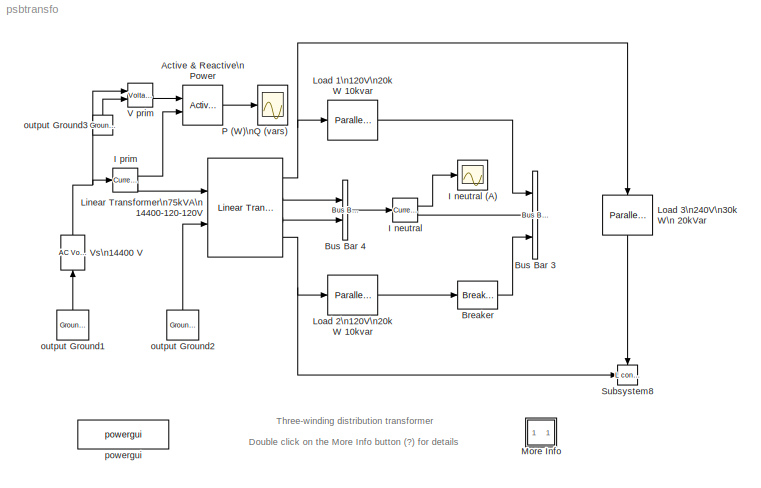
MODEL psbtransfo
KIND model
BLOCK [Reference] Active & Reactive\nPower  REF=powerlib_extras/Measurements/Active & Reactive\nPower
  Ports = [2, 1]
  SourceBlock = powerlib_extras/Measurements/Active & Reactive\nPower
  SourceType = Active & Reactive Power
  f1 = 60
BLOCK [Reference] Breaker  REF=powerlib2/Elements/Breaker
  PSBOutputType = 1
  Ports = [1, 1]
  SourceBlock = powerlib2/Elements/Breaker
  SourceType = Breaker
  Tag = PoWeRsYsTeMbLoCk
  Ts = 0
  a = 1e-5
  c = 1
  comext = off
  cs = 0
  mesure = None
  rs = inf
  times = [ .05 ]
BLOCK [Reference] Bus Bar 3  REF=powerlib2/Connectors/Bus Bar (vert)
  PSBOutputType = 11111111111111111111111111111111111111111111111111111111111111111111111111111111111111111
  Ports = [3]
  SourceBlock = powerlib2/Connectors/Bus Bar (vert)
  SourceType = Bus Bar
  Tag = PoWeRsYsTeMbLoCk
  entrees = 3
  sorties = 0
BLOCK [Reference] Bus Bar 4  REF=powerlib2/Connectors/Bus Bar (thin vert)
  PSBOutputType = 111111111111111111111111111111111111111111111111111111111111111111111111111111111111
  Ports = [2, 1]
  SourceBlock = powerlib2/Connectors/Bus Bar (thin vert)
  SourceType = Bus Bar
  Tag = PoWeRsYsTeMbLoCk
  input = 2
  output = 1
BLOCK [Reference] I neutral  REF=powerlib2/Measurements/Current Measurement
  OutputType = Magnitude
  PSBOutputType = 01
  PSBequivalent = 0
  PhasorSimulation = off
  Ports = [1, 2]
  SourceBlock = powerlib2/Measurements/Current Measurement
  SourceType = Current Measurement
  Tag = PoWeRsYsTeMmEaSuReMeNt
BLOCK [Scope] I neutral (A)
  DataFormat = Array
  NumInputPorts = 1
  Ports = [1]
  TickLabels = on
  TimeRange = 0.2
  YMax = 300
  YMin = -300
BLOCK [Reference] I prim  REF=powerlib2/Measurements/Current Measurement
  OutputType = Magnitude
  PSBOutputType = 01
  PSBequivalent = 0
  PhasorSimulation = off
  Ports = [1, 2]
  SourceBlock = powerlib2/Measurements/Current Measurement
  SourceType = Current Measurement
  Tag = PoWeRsYsTeMmEaSuReMeNt
BLOCK [Reference] Linear Transformer\n75kVA\n14400-120-120V  REF=powerlib2/Elements/Linear Transformer
  PSBOutputType = 1111
  Ports = [2, 4]
  SourceBlock = powerlib2/Elements/Linear Transformer
  SourceType = Linear Transformer
  Tag = PoWeRsYsTeMbLoCk
  a = [75e3,60]
  b = [14.4e3 0.01,0.03]
  c = [120,0.02,0]
  d = [120,0.02,0]
  e = [50,50]
  mesure = None
  w3check = on
BLOCK [Reference] Load 1\n120V\n20kW 10kvar  REF=powerlib2/Elements/Parallel RLC Load
  PSBOutputType = 1
  Ports = [1, 1]
  SourceBlock = powerlib2/Elements/Parallel RLC Load
  SourceType = Parallel RLC Load
  Tag = PoWeRsYsTeMbLoCk
  a = 120
  b = 60
  c = 20e3
  d = 10e3
  e = 0
  mesure = None
BLOCK [Reference] Load 2\n120V\n20kW 10kvar  REF=powerlib2/Elements/Parallel RLC Load
  PSBOutputType = 1
  Ports = [1, 1]
  SourceBlock = powerlib2/Elements/Parallel RLC Load
  SourceType = Parallel RLC Load
  Tag = PoWeRsYsTeMbLoCk
  a = 120
  b = 60
  c = 20e3
  d = 10e3
  e = 0
  mesure = None
BLOCK [Reference] Load 3\n240V\n30kW\n 20kVar  REF=powerlib2/Elements/Parallel RLC Load
  PSBOutputType = 1
  Ports = [1, 1]
  SourceBlock = powerlib2/Elements/Parallel RLC Load
  SourceType = Parallel RLC Load
  Tag = PoWeRsYsTeMbLoCk
  a = 240
  b = 60
  c = 30e3
  d = 0
  e = 20e3
  mesure = None
BLOCK [SubSystem] More Info
  MaskDisplay = disp('?')
  MaskIconFrame = on
  MaskIconOpaque = on
  MaskIconRotate = none
  MaskIconUnits = autoscale
  MinAlgLoopOccurrences = off
  Ports = []
  RTWSystemCode = Auto
  TreatAsAtomicUnit = off
BLOCK [Scope] P (W)\nQ (vars)
  DataFormat = Array
  MaskIconFrame = on
  MaskIconOpaque = on
  MaskIconRotate = none
  MaskIconUnits = autoscale
  NumInputPorts = 1
  Ports = [1]
  TickLabels = on
  TimeRange = 0.2
  YMax = 80000
  YMin = -20000
BLOCK [Reference] Subsystem8  REF=powerlib2/Connectors/L connector
  Ports = [1, 0, 1]
  SourceBlock = powerlib2/Connectors/L connector
  SourceType = Bus Bar
  Tag = PoWeRsYsTeMbLoCk
BLOCK [Reference] V prim  REF=powerlib2/Measurements/Voltage Measurement
  OutputType = Magnitude
  PSBOutputType = 0
  PSBequivalent = 0
  PhasorSimulation = off
  Ports = [2, 1]
  SourceBlock = powerlib2/Measurements/Voltage Measurement
  SourceType = Voltage Measurement
  Tag = PoWeRsYsTeMmEaSuReMeNt
BLOCK [Reference] Vs\n14400 V  REF=powerlib2/Electrical\nSources/AC Voltage Source
  A = 14400*sqrt(2)
  F = 60
  P = 0
  PSBOutputType = 1
  Ports = [1, 1]
  SourceBlock = powerlib2/Electrical\nSources/AC Voltage Source
  SourceType = AC Voltage Source
  Tag = PoWeRsYsTeMbLoCk
  mesure = None
  stime = 0
BLOCK [Reference] output Ground1  REF=powerlib2/Connectors/Ground (output)
  PSBOutputType = 1
  Ports = [0, 1]
  SourceBlock = powerlib2/Connectors/Ground (output)
  SourceType = Ground
  Tag = PoWeRsYsTeMbLoCk
BLOCK [Reference] output Ground2  REF=powerlib2/Connectors/Ground (output)
  PSBOutputType = 1
  Ports = [0, 1]
  SourceBlock = powerlib2/Connectors/Ground (output)
  SourceType = Ground
  Tag = PoWeRsYsTeMbLoCk
BLOCK [Reference] output Ground3  REF=powerlib2/Connectors/Ground (output)
  PSBOutputType = 1
  Ports = [0, 1]
  SourceBlock = powerlib2/Connectors/Ground (output)
  SourceType = Ground
  Tag = PoWeRsYsTeMbLoCk
BLOCK [Reference] powergui  REF=powerlib2/powergui
  DisplayStyle = off
  Frange = logspace(0,3,50)
  FreqAxis = off
  MaxFrequency = 1000
  Ports = []
  RmsSteady = 1
  SourceBlock = powerlib2/powergui
  SourceType = PSB option menu block
  StartTime = 0.0
  Ts = 0
  Xlog = off
  Ylog = off
  ZoomFFT = on
  cycles = 1
  display = off
  echomessages = off
  frequency = 60
  frequencyindice = 1
  frequencyindicesteady = 1
  fundamental = 60
  methode = off
  save = off
  variable = ZData
ANNOTATION (root): Double click on the More Info button (?) for details
ANNOTATION (root): Three-winding distribution transformer
ANNOTATION More Info: Circuit Description
ANNOTATION More Info: Demonstration
ANNOTATION More Info: G. Sybille (Hydro-Quebec)
ANNOTATION More Info: Open the powergui block to obtain the initial voltage and current phasors in steady state.\nAs loads are balanced the neutral current is practically zero.\n\nFurthermore, as the inductive reactive power of Load 1 and Load 2 (2*10 kvar) is compensated by the capacitive reactive power\nof Load 3 (20 kvar),the primary current is almost in phase with voltage The small phase shift (-2.8deg.) is due to\...<+490ch>
ANNOTATION More Info: The transformer primary is connected to a high voltage source (14400 V rms).\nTwo identical inductive loads (20 kW -10 kvar) are connected to the two secondaries.\nA third capacitive load (30 kW -20 kvar) is fed at 240 V.\n\nInitially, the circuit breaker in series with Load 2 is closed, so that the system is balanced.
ANNOTATION More Info: This demonstration illustrates the use of the linear transformer to simulate\na three-winding distribution transformer rated 75 kVA - 14400/120/120 V.
LINE Active & Reactive\nPower:1 -> P (W)\nQ (vars):1
LINE Breaker:1 -> Bus Bar 3:3
LINE Bus Bar 4:1 -> I neutral:1
LINE I neutral:1 -> I neutral (A):1
LINE I neutral:2 -> Bus Bar 3:2
LINE I prim:1 -> Active & Reactive\nPower:2
LINE I prim:2 -> Linear Transformer\n75kVA\n14400-120-120V:1
NET Linear Transformer\n75kVA\n14400-120-120V:1 -> Load 1\n120V\n20kW 10kvar:1, Load 3\n240V\n30kW\n 20kVar:1
LINE Linear Transformer\n75kVA\n14400-120-120V:2 -> Bus Bar 4:1
LINE Linear Transformer\n75kVA\n14400-120-120V:3 -> Bus Bar 4:2
NET Linear Transformer\n75kVA\n14400-120-120V:4 -> Load 2\n120V\n20kW 10kvar:1, Subsystem8:1
LINE Load 1\n120V\n20kW 10kvar:1 -> Bus Bar 3:1
LINE Load 2\n120V\n20kW 10kvar:1 -> Breaker:1
LINE Load 3\n240V\n30kW\n 20kVar:1 -> Subsystem8:enable
LINE V prim:1 -> Active & Reactive\nPower:1
NET Vs\n14400 V:1 -> I prim:1, V prim:1
LINE output Ground1:1 -> Vs\n14400 V:1
LINE output Ground2:1 -> Linear Transformer\n75kVA\n14400-120-120V:2
LINE output Ground3:1 -> V prim:2
note: NET lines group one-source signal fan-out (src -> all destinations, sorted); 1:1 wires keep LINE
